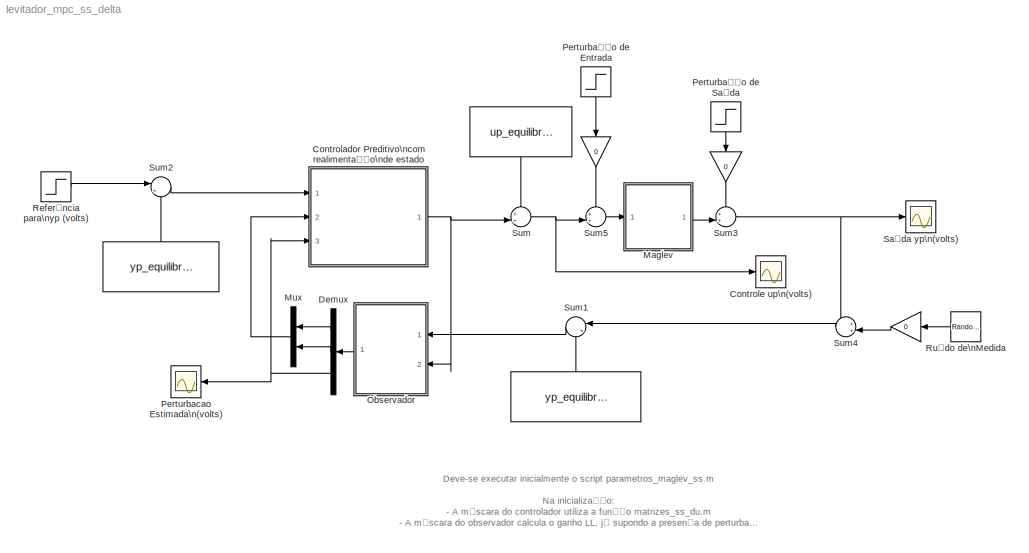
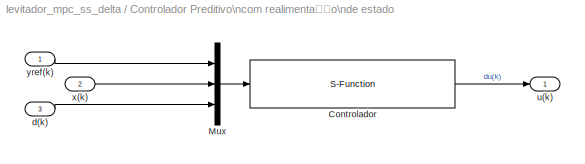
MODEL levitador_mpc_ss_delta
KIND model
BLOCK [Constant]  
  SID = 42
  Value = yp_equilibrio
BLOCK [Constant]   
  SID = 43
  Value = yp_equilibrio
BLOCK [Constant]    
  SID = 41
  Value = up_equilibrio
BLOCK [Gain]      
  Gain = 0
  OutDataTypeStr = Inherit: Inherit via internal rule
  ParamDataTypeStr = Inherit: Inherit via internal rule
  SID = 88
  SaturateOnIntegerOverflow = off
BLOCK [Gain]         
  Gain = 0
  OutDataTypeStr = Inherit: Inherit via internal rule
  ParamDataTypeStr = Inherit: Inherit via internal rule
  SID = 89
  SaturateOnIntegerOverflow = off
BLOCK [Gain]          
  Gain = 0
  OutDataTypeStr = Inherit: Inherit via internal rule
  ParamDataTypeStr = Inherit: Inherit via internal rule
  SID = 90
  SaturateOnIntegerOverflow = off
BLOCK [SubSystem] Controlador Preditivo\ncom realimentação\nde estado
  FunctionWithSeparateData = off
  MaskCallbackString = ||||||
  MaskEnableString = on,on,on,on,on,on,on
  MaskHideContents = off
  MaskIconFrame = on
  MaskIconOpaque = on
  MaskIconRotate = none
  MaskIconUnits = autoscale
  MaskInitialization = [Nx,Nu,Kdelta] = matrizes_ss_delta(A,B,C,N,M,rho);
  MaskPortRotate = default
  MaskPromptString = Peso do controle (rho)|Horizonte de Predição (N)|Horizonte de Controle (M)|Matriz A|Matriz B|Matriz C|Periodo de amostragem
  MaskStyleString = edit,edit,edit,edit,edit,edit,edit
  MaskToolTipString = on,on,on,on,on,on,on
  MaskTunableValueString = on,on,on,on,on,on,on
  MaskValueString = 1|20|5|A|B|C|T
  MaskVariables = rho=@1;N=@2;M=@3;A=@4;B=@5;C=@6;T=@7;
  MaskVisibilityString = on,on,on,on,on,on,on
  MinAlgLoopOccurrences = off
  Opaque = off
  Ports = [3, 1]
  PropExecContextOutsideSubsystem = off
  RTWSystemCode = Auto
  RequestExecContextInheritance = off
  SID = 1
BLOCK [S-Function] Controlador Preditivo\ncom realimentação\nde estado/Controlador
  EnableBusSupport = off
  FunctionName = mpc_ss_delta
  Parameters = Nx,Nu,Kdelta,T
  Ports = [1, 1]
  SID = 5
BLOCK [Mux] Controlador Preditivo\ncom realimentação\nde estado/Mux
  DisplayOption = bar
  Inputs = 3
  Ports = [3, 1]
  SID = 6
BLOCK [Inport] Controlador Preditivo\ncom realimentação\nde estado/d(k)
  IconDisplay = Port number
  Port = 3
  SID = 91
BLOCK [Outport] Controlador Preditivo\ncom realimentação\nde estado/u(k)
  IconDisplay = Port number
  SID = 9
BLOCK [Inport] Controlador Preditivo\ncom realimentação\nde estado/x(k)
  IconDisplay = Port number
  Port = 2
  SID = 3
BLOCK [Inport] Controlador Preditivo\ncom realimentação\nde estado/yref(k)
  IconDisplay = Port number
  SID = 2
BLOCK [Scope] Controle up\n(volts)
  Floating = off
  LimitDataPoints = off
  NumInputPorts = 1
  Ports = [1]
  SID = 10
  SaveName = y1
  ShowLegends = off
  TimeRange = 2
  YMax = 3.5
  YMin = 2
BLOCK [Demux] Demux
  DisplayOption = bar
  Outputs = 3
  Ports = [1, 3]
  SID = 63
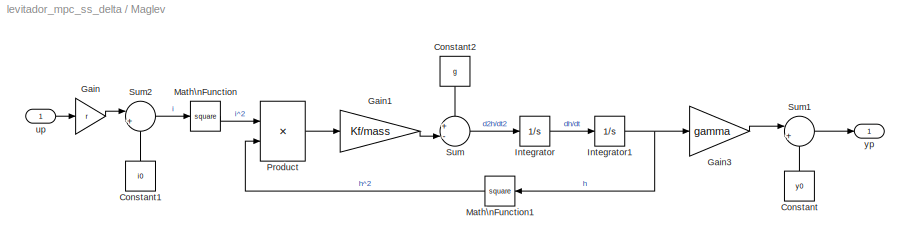
BLOCK [SubSystem] Maglev
  FunctionWithSeparateData = off
  MaskCallbackString = ||||||||
  MaskEnableString = on,on,on,on,on,on,on,on,on
  MaskHideContents = off
  MaskIconFrame = on
  MaskIconOpaque = on
  MaskIconRotate = none
  MaskIconUnits = autoscale
  MaskPortRotate = default
  MaskPromptString = massa (kg)|g (m/s^2)|y0 (V)|gamma (V/m)|i0 (A)|r (A/V)|Kf (N*m^2/A^2)|yp inicial (V)|Periodo de Amostragem (s)
  MaskStyleString = edit,edit,edit,edit,edit,edit,edit,edit,edit
  MaskToolTipString = on,on,on,on,on,on,on,on,on
  MaskTunableValueString = on,on,on,on,on,on,on,on,on
  MaskValueString = mass|g|y0|gamma|i0|r|Kf|yp_equilibrio|T
  MaskVariables = mass=@1;g=@2;y0=@3;gamma=@4;i0=@5;r=@6;Kf=@7;yp_inicial=@8;T=@9;
  MaskVisibilityString = on,on,on,on,on,on,on,on,on
  MinAlgLoopOccurrences = off
  Opaque = off
  Ports = [1, 1]
  PropExecContextOutsideSubsystem = off
  RTWSystemCode = Auto
  RequestExecContextInheritance = off
  SID = 66
BLOCK [Constant] Maglev/Constant
  SID = 68
  Value = y0
BLOCK [Constant] Maglev/Constant1
  SID = 69
  Value = i0
BLOCK [Constant] Maglev/Constant2
  SID = 70
  Value = g
BLOCK [Gain] Maglev/Gain
  Gain = r
  SID = 71
BLOCK [Gain] Maglev/Gain1
  Gain = Kf/mass
  SID = 72
BLOCK [Gain] Maglev/Gain3
  Gain = gamma
  SID = 74
BLOCK [Integrator] Maglev/Integrator
  Ports = [1, 1]
  SID = 75
BLOCK [Integrator] Maglev/Integrator1
  InitialCondition = (yp_inicial - y0)/gamma
  Ports = [1, 1]
  SID = 76
BLOCK [Math] Maglev/Math\nFunction
  Operator = square
  Ports = [1, 1]
  SID = 77
BLOCK [Math] Maglev/Math\nFunction1
  Operator = square
  Ports = [1, 1]
  SID = 78
BLOCK [Product] Maglev/Product
  InputSameDT = off
  Inputs = */
  Ports = [2, 1]
  RndMeth = Floor
  SID = 79
BLOCK [Sum] Maglev/Sum
  IconShape = round
  InputSameDT = off
  Inputs = +-|
  OutDataTypeStr = Inherit: Inherit via internal rule
  Ports = [2, 1]
  SID = 80
BLOCK [Sum] Maglev/Sum1
  IconShape = round
  InputSameDT = off
  Inputs = |++
  OutDataTypeStr = Inherit: Inherit via internal rule
  Ports = [2, 1]
  SID = 81
BLOCK [Sum] Maglev/Sum2
  IconShape = round
  InputSameDT = off
  Inputs = |++
  OutDataTypeStr = Inherit: Inherit via internal rule
  Ports = [2, 1]
  SID = 82
BLOCK [Inport] Maglev/up
  IconDisplay = Port number
  SID = 67
BLOCK [Outport] Maglev/yp
  IconDisplay = Port number
  SID = 83
BLOCK [Mux] Mux
  DisplayOption = bar
  Inputs = 2
  Ports = [2, 1]
  SID = 92
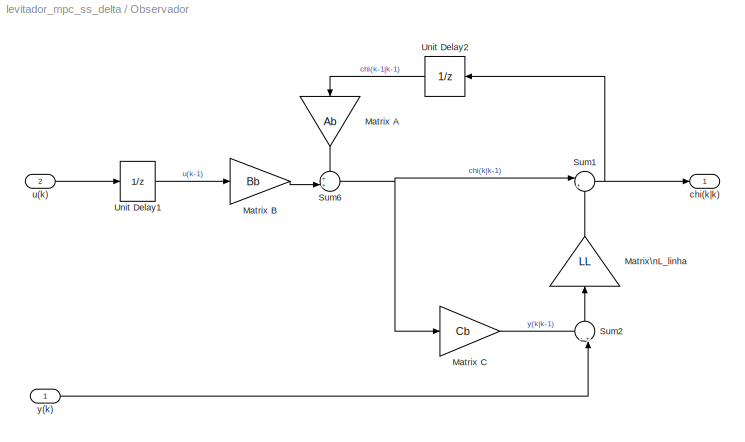
BLOCK [SubSystem] Observador
  FunctionWithSeparateData = off
  MaskCallbackString = ||||
  MaskEnableString = on,on,on,on,on
  MaskHideContents = off
  MaskIconFrame = on
  MaskIconOpaque = on
  MaskIconRotate = none
  MaskIconUnits = autoscale
  MaskInitialization = n = size(A,1);\nzerosn = zeros(n,1);\nAb = [A zerosn ; zerosn' 1];\nBb = [B;0];\nCb = [C 1];\nL = place(Ab',Cb',poles)';\nLL = inv(Ab)*L;
  MaskPortRotate = default
  MaskPromptString = Matriz A|Matriz B|Matriz C|Periodo de amostragem|Pólos para a dinâmica de erro de estimação
  MaskStyleString = edit,edit,edit,edit,edit
  MaskToolTipString = on,on,on,on,on
  MaskTunableValueString = on,on,on,on,on
  MaskValueString = A|B|C|T|[0.5, 0.45, 0.4]
  MaskVariables = A=@1;B=@2;C=@3;T=@4;poles=@5;
  MaskVisibilityString = on,on,on,on,on
  MinAlgLoopOccurrences = off
  Opaque = off
  Ports = [2, 1]
  PropExecContextOutsideSubsystem = off
  RTWSystemCode = Auto
  RequestExecContextInheritance = off
  SID = 48
BLOCK [Gain] Observador/Matrix A
  Gain = Ab
  Multiplication = Matrix(K*u)
  SID = 53
BLOCK [Gain] Observador/Matrix B
  Gain = Bb
  Multiplication = Matrix(K*u)
  SID = 52
BLOCK [Gain] Observador/Matrix C
  Gain = Cb
  Multiplication = Matrix(K*u)
  SID = 51
BLOCK [Gain] Observador/Matrix\nL_linha
  Gain = LL
  Multiplication = Matrix(K*u)
  SID = 54
BLOCK [Sum] Observador/Sum1
  IconShape = round
  InputSameDT = off
  Inputs = |++
  OutDataTypeStr = Inherit: Inherit via internal rule
  Ports = [2, 1]
  SID = 55
BLOCK [Sum] Observador/Sum2
  IconShape = round
  InputSameDT = off
  Inputs = -+|
  OutDataTypeStr = Inherit: Inherit via internal rule
  Ports = [2, 1]
  SID = 56
BLOCK [Sum] Observador/Sum6
  IconShape = round
  InputSameDT = off
  Inputs = ++|
  OutDataTypeStr = Inherit: Inherit via internal rule
  Ports = [2, 1]
  SID = 57
BLOCK [UnitDelay] Observador/Unit Delay1
  SID = 58
  SampleTime = T
BLOCK [UnitDelay] Observador/Unit Delay2
  SID = 59
  SampleTime = T
BLOCK [Outport] Observador/chi(k|k)
  IconDisplay = Port number
  SID = 60
BLOCK [Inport] Observador/u(k)
  IconDisplay = Port number
  Port = 2
  SID = 50
BLOCK [Inport] Observador/y(k)
  IconDisplay = Port number
  SID = 49
BLOCK [Scope] Perturbacao Estimada\n(volts)
  Floating = off
  LimitDataPoints = off
  NumInputPorts = 1
  Ports = [1]
  SID = 61
  SampleInput = on
  SampleTime = T
  SaveName = y2
  ShowLegends = off
  TimeRange = 2
  YMax = 1
  YMin = -0.4
  ZoomMode = yonly
BLOCK [Step] Perturbação de Entrada
  After = 0.5
  SID = 30
  SampleTime = 0
BLOCK [Step] Perturbação de Saída
  After = -0.1
  SID = 31
  SampleTime = 0
BLOCK [Step] Referência para\nyp (volts)
  After = 0.5
  SID = 32
  SampleTime = 0
  Time = 0.2
BLOCK [RandomNumber] Ruído de\nMedida
  SID = 33
  SampleTime = 0
  Variance = 0.0001
BLOCK [Scope] Saída yp\n(volts)
  Floating = off
  LimitDataPoints = off
  NumInputPorts = 1
  Ports = [1]
  SID = 34
  SaveName = y
  ShowLegends = off
  TimeRange = 2
  YMax = 0.9
  YMin = -0.1
  ZoomMode = yonly
BLOCK [Sum] Sum
  IconShape = round
  InputSameDT = off
  Inputs = ++|
  OutDataTypeStr = Inherit: Inherit via internal rule
  Ports = [2, 1]
  SID = 35
BLOCK [Sum] Sum1
  IconShape = round
  InputSameDT = off
  Inputs = |+-
  OutDataTypeStr = Inherit: Inherit via internal rule
  Ports = [2, 1]
  SID = 36
BLOCK [Sum] Sum2
  IconShape = round
  InputSameDT = off
  Inputs = |+-
  OutDataTypeStr = Inherit: Inherit via internal rule
  Ports = [2, 1]
  SID = 37
BLOCK [Sum] Sum3
  IconShape = round
  InputSameDT = off
  Inputs = ++|
  OutDataTypeStr = Inherit: Inherit via internal rule
  Ports = [2, 1]
  SID = 38
BLOCK [Sum] Sum4
  IconShape = round
  InputSameDT = off
  Inputs = ++|
  OutDataTypeStr = Inherit: Inherit via internal rule
  Ports = [2, 1]
  SID = 39
BLOCK [Sum] Sum5
  IconShape = round
  InputSameDT = off
  Inputs = ++|
  OutDataTypeStr = Inherit: Inherit via internal rule
  Ports = [2, 1]
  SID = 40
ANNOTATION (root): Deve-se executar inicialmente o script parametros_maglev_ss.m\n\nNa inicialização:\n- A máscara do controlador utiliza a função matrizes_ss_du.m\n- A máscara do observador calcula o ganho LL, já supondo a presença de perturbação de saída
LINE          :1 -> Sum4:2
LINE         :1 -> Sum3:1
LINE      :1 -> Sum5:1
LINE    :1 -> Sum:1
LINE   :1 -> Sum2:2
LINE  :1 -> Sum1:2
LINE Controlador Preditivo\ncom realimentação\nde estado/Controlador:1 -> Controlador Preditivo\ncom realimentação\nde estado/u(k):1
LINE Controlador Preditivo\ncom realimentação\nde estado/Mux:1 -> Controlador Preditivo\ncom realimentação\nde estado/Controlador:1
LINE Controlador Preditivo\ncom realimentação\nde estado/d(k):1 -> Controlador Preditivo\ncom realimentação\nde estado/Mux:3
LINE Controlador Preditivo\ncom realimentação\nde estado/x(k):1 -> Controlador Preditivo\ncom realimentação\nde estado/Mux:2
LINE Controlador Preditivo\ncom realimentação\nde estado/yref(k):1 -> Controlador Preditivo\ncom realimentação\nde estado/Mux:1
NET Controlador Preditivo\ncom realimentação\nde estado:1 -> Observador:2, Sum:2
LINE Demux:1 -> Mux:1
LINE Demux:2 -> Mux:2
NET Demux:3 -> Controlador Preditivo\ncom realimentação\nde estado:3, Perturbacao Estimada\n(volts):1
LINE Maglev/Constant1:1 -> Maglev/Sum2:2
LINE Maglev/Constant2:1 -> Maglev/Sum:1
LINE Maglev/Constant:1 -> Maglev/Sum1:2
LINE Maglev/Gain1:1 -> Maglev/Sum:2
LINE Maglev/Gain3:1 -> Maglev/Sum1:1
LINE Maglev/Gain:1 -> Maglev/Sum2:1
NET Maglev/Integrator1:1 -> Maglev/Gain3:1, Maglev/Math\nFunction1:1
LINE Maglev/Integrator:1 -> Maglev/Integrator1:1
LINE Maglev/Math\nFunction1:1 -> Maglev/Product:2
LINE Maglev/Math\nFunction:1 -> Maglev/Product:1
LINE Maglev/Product:1 -> Maglev/Gain1:1
LINE Maglev/Sum1:1 -> Maglev/yp:1
LINE Maglev/Sum2:1 -> Maglev/Math\nFunction:1
LINE Maglev/Sum:1 -> Maglev/Integrator:1
LINE Maglev/up:1 -> Maglev/Gain:1
LINE Maglev:1 -> Sum3:2
LINE Mux:1 -> Controlador Preditivo\ncom realimentação\nde estado:2
LINE Observador/Matrix A:1 -> Observador/Sum6:1
LINE Observador/Matrix B:1 -> Observador/Sum6:2
LINE Observador/Matrix C:1 -> Observador/Sum2:1
LINE Observador/Matrix\nL_linha:1 -> Observador/Sum1:2
NET Observador/Sum1:1 -> Observador/Unit Delay2:1, Observador/chi(k|k):1
LINE Observador/Sum2:1 -> Observador/Matrix\nL_linha:1
NET Observador/Sum6:1 -> Observador/Matrix C:1, Observador/Sum1:1
LINE Observador/Unit Delay1:1 -> Observador/Matrix B:1
LINE Observador/Unit Delay2:1 -> Observador/Matrix A:1
LINE Observador/u(k):1 -> Observador/Unit Delay1:1
LINE Observador/y(k):1 -> Observador/Sum2:2
LINE Observador:1 -> Demux:1
LINE Perturbação de Entrada:1 ->      :1
LINE Perturbação de Saída:1 ->         :1
LINE Referência para\nyp (volts):1 -> Sum2:1
LINE Ruído de\nMedida:1 ->          :1
LINE Sum1:1 -> Observador:1
LINE Sum2:1 -> Controlador Preditivo\ncom realimentação\nde estado:1
NET Sum3:1 -> Saída yp\n(volts):1, Sum4:1
LINE Sum4:1 -> Sum1:1
LINE Sum5:1 -> Maglev:1
NET Sum:1 -> Controle up\n(volts):1, Sum5:2
note: NET lines group one-source signal fan-out (src -> all destinations, sorted); 1:1 wires keep LINE
